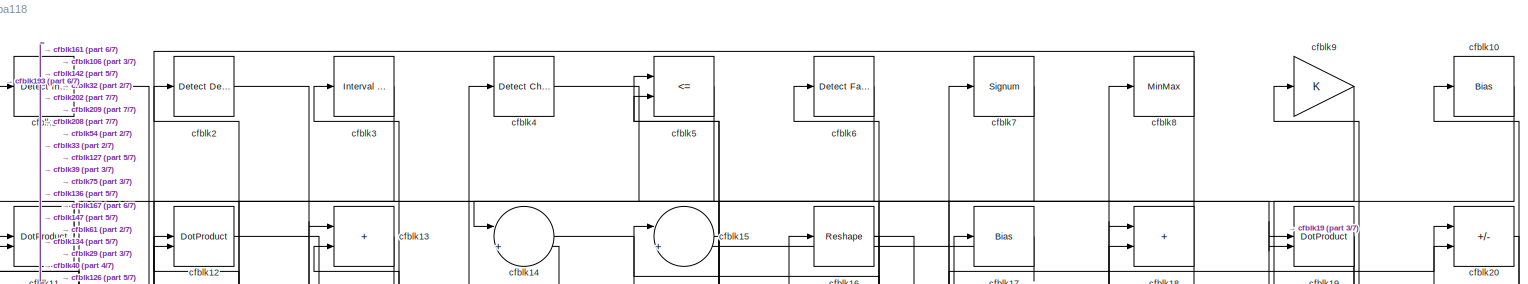
[diagram: root canvas - part 1/7, full width, top band]
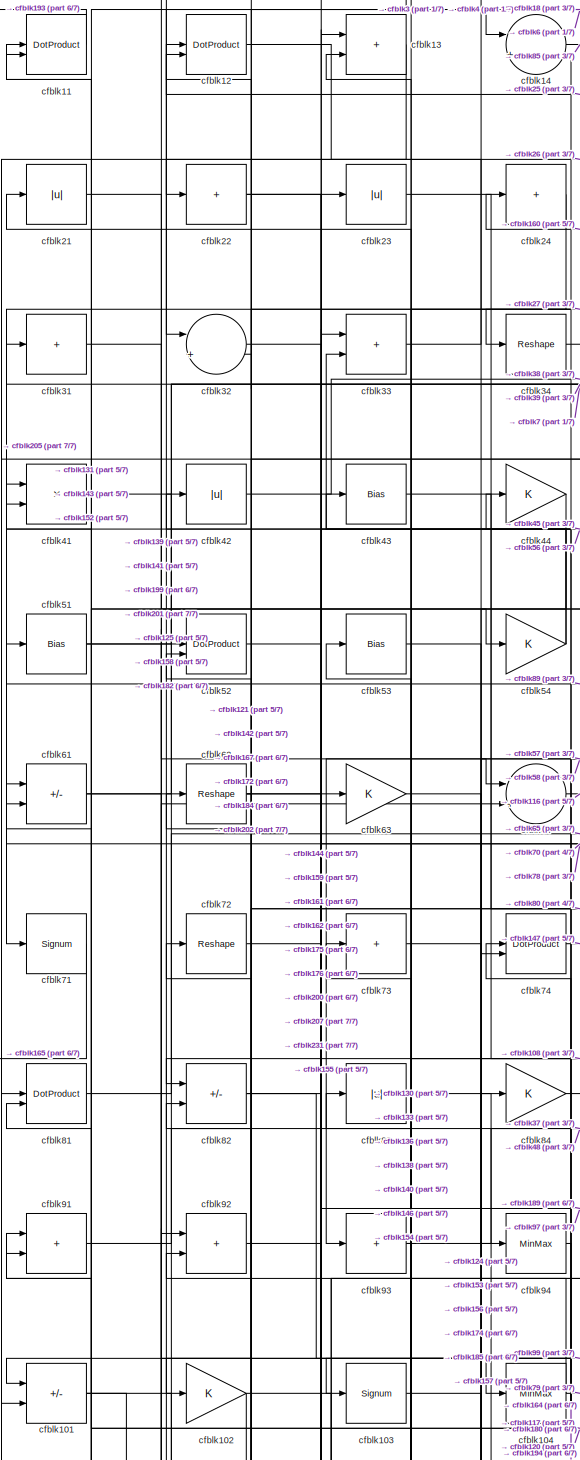
[diagram: root canvas - part 2/7, top left region]
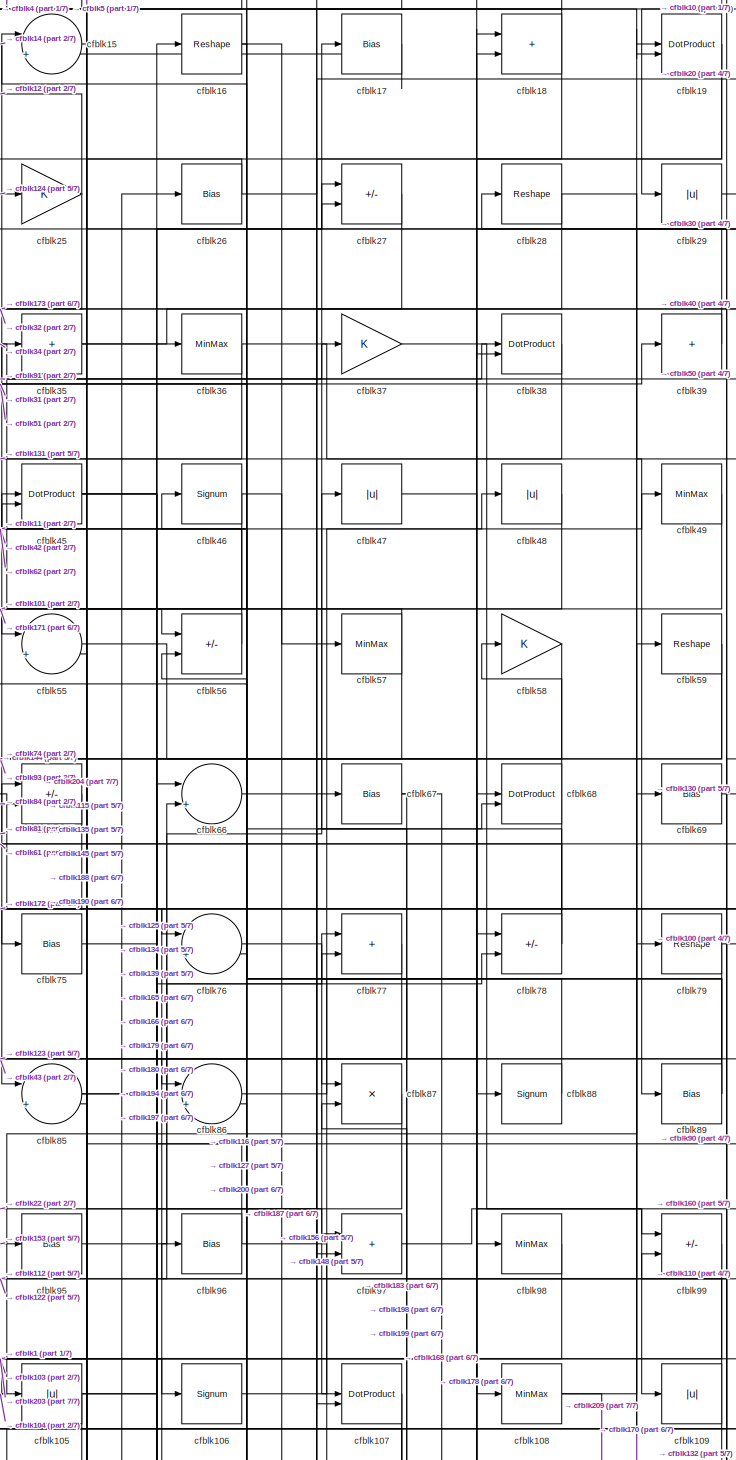
[diagram: root canvas - part 3/7, top center region]
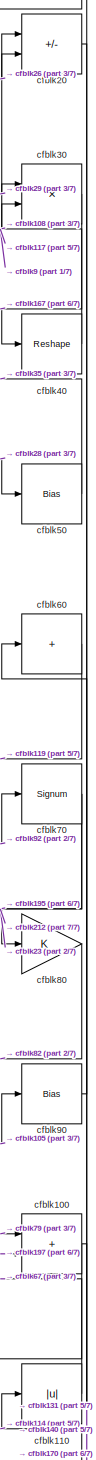
[diagram: root canvas - part 4/7, top right region]
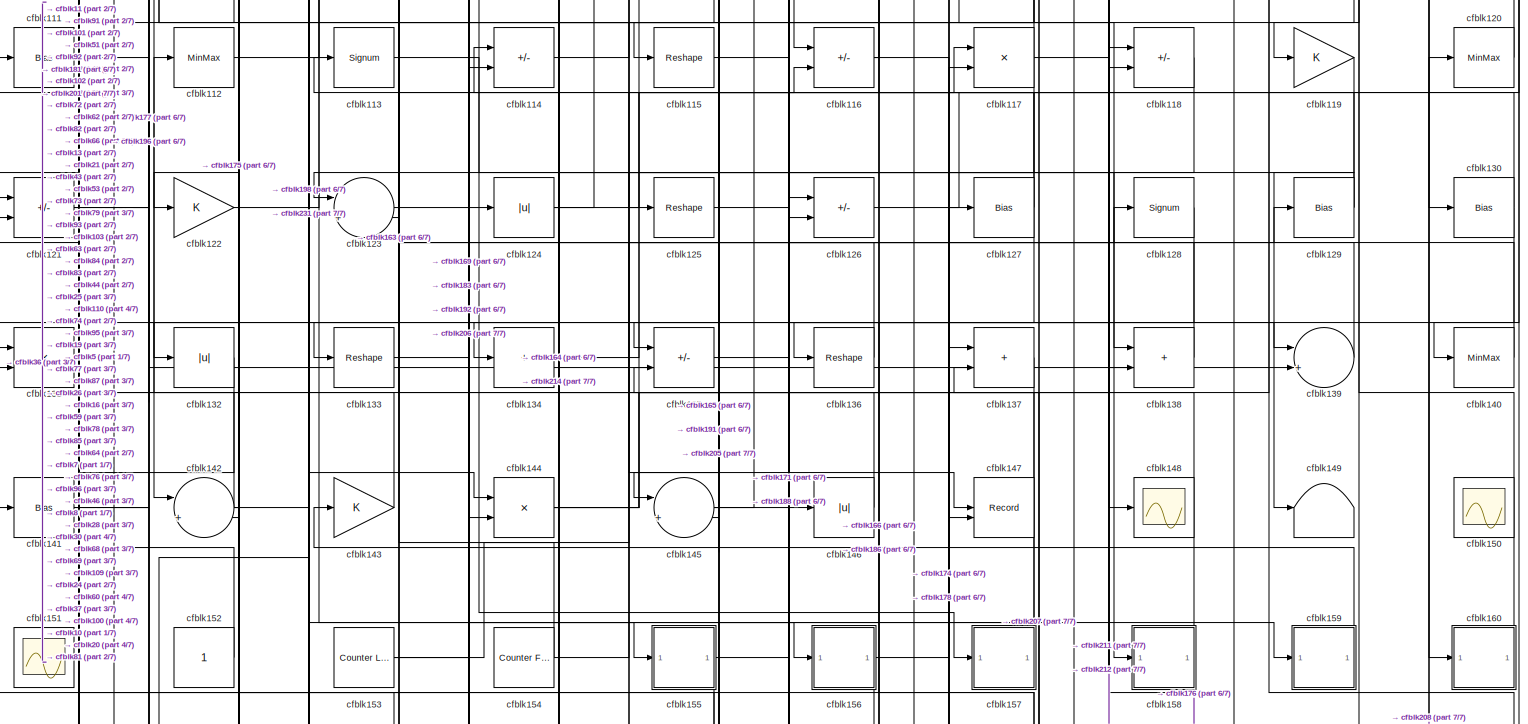
[diagram: root canvas - part 5/7, full width, middle band]
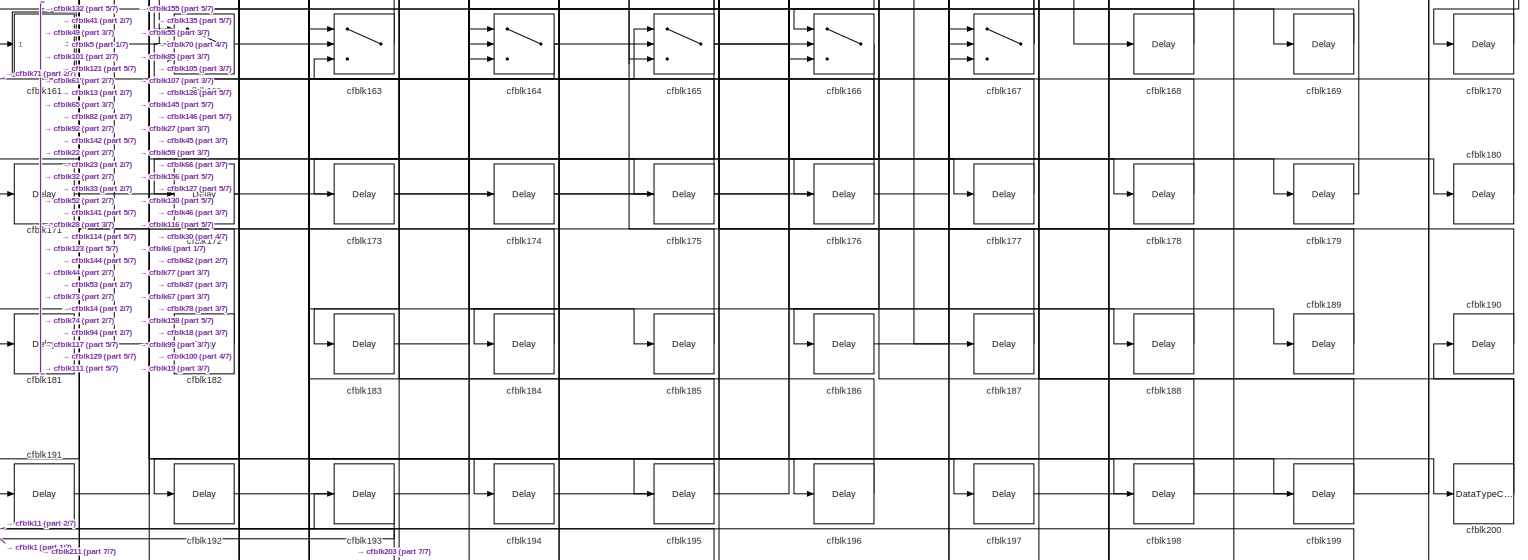
[diagram: root canvas - part 6/7, full width, bottom band]
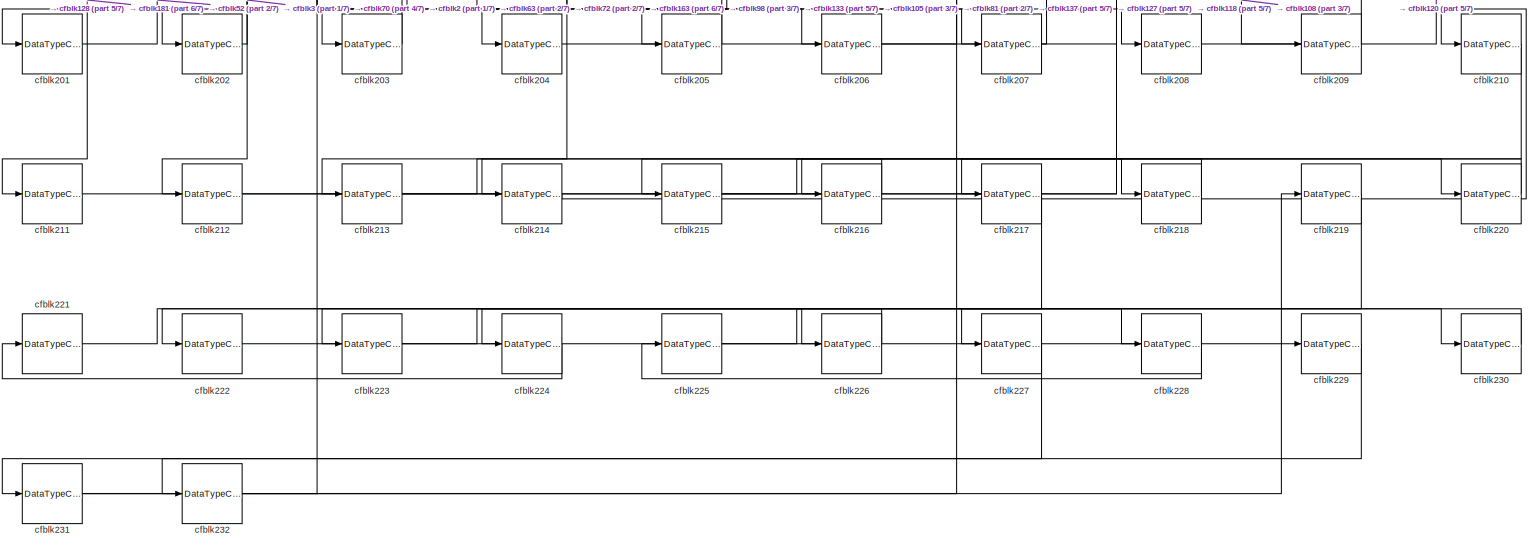
[diagram: root canvas - part 7/7, full width, bottom band]
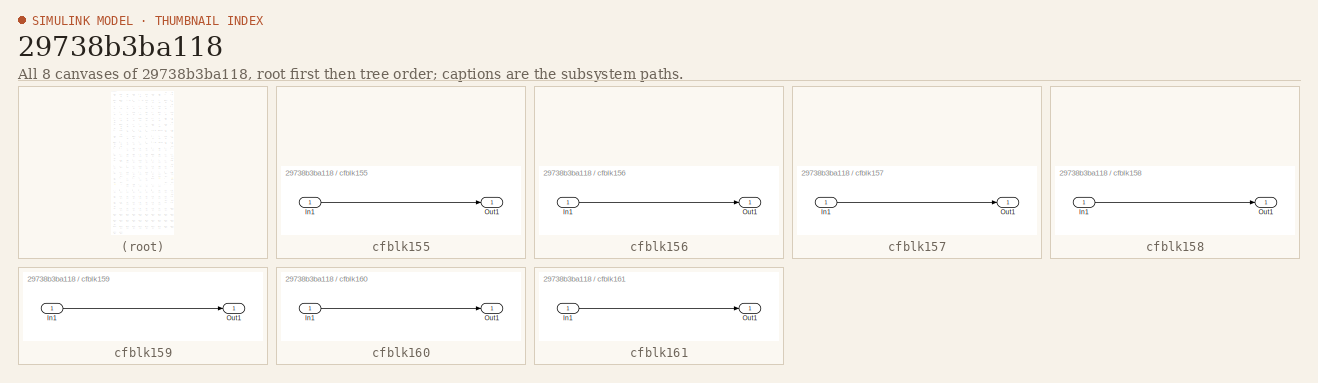
[diagram: thumbnail index - all 8 canvases of the model, root first then tree order]
MODEL slx_29738b3ba118
KIND model
CONFIG AbsTol = auto
CONFIG EnableMultiTasking = off
CONFIG FixedStep = auto
CONFIG MaxStep = auto
CONFIG MinStep = auto
CONFIG RelTol = 1e-3
CONFIG SampleTimeConstraint = Unconstrained
CONFIG SolverName = VariableStepAuto
CONFIG StartTime = 0.0
CONFIG StopTime = 10.0
BLOCK [Reference] cfblk1  REF=simulink/Logic and Bit
Operations/Detect
Increase
  LibrarySourceBlock = hdlsllib/Logic and Bit\nOperations/Detect\nIncrease
  SourceBlock = simulink/Logic and Bit\nOperations/Detect\nIncrease
  SourceType = Detect Increase
BLOCK [Bias] cfblk10
  Bias = 0.0
  SaturateOnIntegerOverflow = off
BLOCK [Sum] cfblk100
  IconShape = rectangular
BLOCK [Sum] cfblk101
  IconShape = rectangular
  Inputs = +-
BLOCK [Gain] cfblk102
BLOCK [Signum] cfblk103
BLOCK [MinMax] cfblk104
BLOCK [Abs] cfblk105
  SaturateOnIntegerOverflow = off
BLOCK [Signum] cfblk106
BLOCK [DotProduct] cfblk107
  OutDataTypeStr = Inherit: Inherit via internal rule
BLOCK [MinMax] cfblk108
BLOCK [Abs] cfblk109
  SaturateOnIntegerOverflow = off
BLOCK [DotProduct] cfblk11
  OutDataTypeStr = Inherit: Inherit via internal rule
BLOCK [Abs] cfblk110
  SaturateOnIntegerOverflow = off
BLOCK [Bias] cfblk111
  Bias = 0.0
  SaturateOnIntegerOverflow = off
BLOCK [MinMax] cfblk112
BLOCK [Signum] cfblk113
BLOCK [Sum] cfblk114
  IconShape = rectangular
  Inputs = +-
BLOCK [Reshape] cfblk115
BLOCK [Sum] cfblk116
  IconShape = rectangular
  Inputs = +-
BLOCK [Product] cfblk117
  Inputs = */
  RndMeth = Zero
  SaturateOnIntegerOverflow = on
BLOCK [Sum] cfblk118
  IconShape = rectangular
  Inputs = +-
BLOCK [Gain] cfblk119
BLOCK [DotProduct] cfblk12
  OutDataTypeStr = Inherit: Inherit via internal rule
BLOCK [MinMax] cfblk120
BLOCK [Sum] cfblk121
  IconShape = rectangular
  Inputs = +-
BLOCK [Gain] cfblk122
BLOCK [Sum] cfblk123
  Inputs = |++
BLOCK [Abs] cfblk124
  SaturateOnIntegerOverflow = off
BLOCK [Reshape] cfblk125
BLOCK [Sum] cfblk126
  IconShape = rectangular
  Inputs = +-
BLOCK [Bias] cfblk127
  Bias = 0.0
  SaturateOnIntegerOverflow = off
BLOCK [Signum] cfblk128
BLOCK [Bias] cfblk129
  Bias = 0.0
  SaturateOnIntegerOverflow = off
BLOCK [Sum] cfblk13
  IconShape = rectangular
BLOCK [Bias] cfblk130
  Bias = 0.0
  SaturateOnIntegerOverflow = off
BLOCK [Product] cfblk131
  Inputs = */
  RndMeth = Zero
  SaturateOnIntegerOverflow = on
BLOCK [Abs] cfblk132
  SaturateOnIntegerOverflow = off
BLOCK [Reshape] cfblk133
BLOCK [Sum] cfblk134
  IconShape = rectangular
  Inputs = +
BLOCK [Sum] cfblk135
  IconShape = rectangular
  Inputs = +-
BLOCK [Reshape] cfblk136
BLOCK [Sum] cfblk137
  IconShape = rectangular
BLOCK [Sum] cfblk138
  IconShape = rectangular
BLOCK [Sum] cfblk139
  Inputs = |++
BLOCK [Sum] cfblk14
  Inputs = |++
BLOCK [MinMax] cfblk140
BLOCK [Bias] cfblk141
  Bias = 0.0
  SaturateOnIntegerOverflow = off
BLOCK [Sum] cfblk142
  Inputs = |++
BLOCK [Gain] cfblk143
BLOCK [Product] cfblk144
  Inputs = */
  RndMeth = Zero
  SaturateOnIntegerOverflow = on
BLOCK [Sum] cfblk145
  Inputs = |++
BLOCK [Abs] cfblk146
  SaturateOnIntegerOverflow = off
BLOCK [Record] cfblk147
  CompatibilityTag = XY
  FileSettingsInternal = {"entries":[{"content":{"excelSettings":{"content":{},"type":"Streamout.ExcelSettings"}},"type":"Streamout.FileSettingStorage","uuid":""}],"packageUris":["http:\/\/schema.mathworks.com\/mf0\/streamout_blocks\/R2020a"],"version":"1.0"}
  Layout = [1 1]
  SignalsInternal = {"entries":[{"content":{"signals":[{"content":{"blockPath":[],"dimensions":[1],"domain":"","lineColor":"#a2142f","plots":[1],"port":1,"signalID":1091,"signalName":"XY Graph:1"},"type":"RecordBlkView.Signal","uuid":""},{"content":{"blockPath":[],"dimensions":[1],"domain":"","lineColor":"#139fff","plots":[1],"port":2,"signalID":1094,"signalName":"XY Graph:2"},"type":"RecordBlkView.Signal","uuid":""}...<+146ch>
  VisualizationBindings = {"xyplotplugin":{"info":[{"series":[{"bindingParametersList":[{"parameter":"X-Axis","signalID":1091,"signalName":"XY Graph:1"},{"parameter":"Y-Axis","signalID":1094,"signalName":"XY Graph:2"}],"seriesID":44027}],"subplotID":1}]}}
  st = -1
BLOCK [Scope] cfblk148
  Floating = off
  NumInputPorts = 1
  ScopeSpecificationString = Simulink.scopes.TimeScopeBlockCfg('CurrentConfiguration', extmgr.ConfigurationSet(extmgr.Configuration('Core','General UI',true),extmgr.Configuration('Core','Source UI',true),extmgr.Configuration('Sources','WiredSimulink',true,'DataLoggingVariableName','ScopeData2','DataLoggingSaveFormat','Array','DataLoggingLimitDataPoints',true,'DataLoggingDecimation','1'),extmgr.Configuration('Visuals','Time Do...<+868ch>
BLOCK [Terminator] cfblk149
BLOCK [Sum] cfblk15
  Inputs = |++
BLOCK [Scope] cfblk150
  Floating = on
  NumInputPorts = 1
  ScopeSpecificationString = Simulink.scopes.TimeScopeBlockCfg('CurrentConfiguration', extmgr.ConfigurationSet(extmgr.Configuration('Core','General UI',true,'FigureColor',[0.156862745098039 0.156862745098039 0.156862745098039]),extmgr.Configuration('Core','Source UI',true),extmgr.Configuration('Sources','WiredSimulink',true,'DataLoggingVariableName','ScopeData1','DataLoggingSaveFormat','StructureWithTime','DataLoggingLimitDat...<+2713ch>
BLOCK [Scope] cfblk151
  Floating = on
  NumInputPorts = 1
  ScopeSpecificationString = Simulink.scopes.TimeScopeBlockCfg('CurrentConfiguration', extmgr.ConfigurationSet(extmgr.Configuration('Core','General UI',true,'FigureColor',[0.156862745098039 0.156862745098039 0.156862745098039]),extmgr.Configuration('Core','Source UI',true),extmgr.Configuration('Sources','WiredSimulink',true,'DataLoggingVariableName','ScopeData1','DataLoggingSaveFormat','StructureWithTime','DataLoggingLimitDat...<+2713ch>
BLOCK [Constant] cfblk152
  SampleTime = -1
BLOCK [Reference] cfblk153  REF=hdlsllib/Sources/Counter
Limited
  SourceBlock = hdlsllib/Sources/Counter\nLimited
  SourceType = Counter Limited
BLOCK [Reference] cfblk154  REF=hdlsllib/Sources/Counter
Free-Running
  SourceBlock = hdlsllib/Sources/Counter\nFree-Running
  SourceType = Counter Free-Running
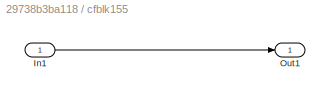
BLOCK [SubSystem] cfblk155
  LibrarySourceBlock = hdlsllib/Ports &\nSubsystems/Subsystem
BLOCK [Inport] cfblk155/In1
BLOCK [Outport] cfblk155/Out1
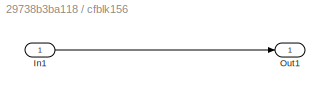
BLOCK [SubSystem] cfblk156
  LibrarySourceBlock = hdlsllib/Ports &\nSubsystems/Subsystem
BLOCK [Inport] cfblk156/In1
BLOCK [Outport] cfblk156/Out1
BLOCK [SubSystem] cfblk157
  LibrarySourceBlock = hdlsllib/Ports &\nSubsystems/Subsystem
BLOCK [Inport] cfblk157/In1
BLOCK [Outport] cfblk157/Out1
BLOCK [SubSystem] cfblk158
  LibrarySourceBlock = hdlsllib/Ports &\nSubsystems/Subsystem
BLOCK [Inport] cfblk158/In1
BLOCK [Outport] cfblk158/Out1
BLOCK [SubSystem] cfblk159
  LibrarySourceBlock = hdlsllib/Ports &\nSubsystems/Subsystem
BLOCK [Inport] cfblk159/In1
BLOCK [Outport] cfblk159/Out1
BLOCK [Reshape] cfblk16
BLOCK [SubSystem] cfblk160
  LibrarySourceBlock = hdlsllib/Ports &\nSubsystems/Subsystem
BLOCK [Inport] cfblk160/In1
BLOCK [Outport] cfblk160/Out1
BLOCK [SubSystem] cfblk161
  LibrarySourceBlock = hdlsllib/Ports &\nSubsystems/Subsystem
BLOCK [Inport] cfblk161/In1
BLOCK [Outport] cfblk161/Out1
BLOCK [Switch] cfblk162
  InputSameDT = off
  SaturateOnIntegerOverflow = off
BLOCK [Switch] cfblk163
  InputSameDT = off
  SaturateOnIntegerOverflow = off
BLOCK [Switch] cfblk164
  InputSameDT = off
  SaturateOnIntegerOverflow = off
BLOCK [Switch] cfblk165
  InputSameDT = off
  SaturateOnIntegerOverflow = off
BLOCK [Switch] cfblk166
  InputSameDT = off
  SaturateOnIntegerOverflow = off
BLOCK [Switch] cfblk167
  InputSameDT = off
  SaturateOnIntegerOverflow = off
BLOCK [Delay] cfblk168
  InputPortMap = u0
  SampleTime = 1
BLOCK [Delay] cfblk169
  InputPortMap = u0
  SampleTime = 1
BLOCK [Bias] cfblk17
  Bias = 0.0
  SaturateOnIntegerOverflow = off
BLOCK [Delay] cfblk170
  InputPortMap = u0
  SampleTime = 1
BLOCK [Delay] cfblk171
  InputPortMap = u0
  SampleTime = 1
BLOCK [Delay] cfblk172
  InputPortMap = u0
  SampleTime = 1
BLOCK [Delay] cfblk173
  InputPortMap = u0
  SampleTime = 1
BLOCK [Delay] cfblk174
  InputPortMap = u0
  SampleTime = 1
BLOCK [Delay] cfblk175
  InputPortMap = u0
  SampleTime = 1
BLOCK [Delay] cfblk176
  InputPortMap = u0
  SampleTime = 1
BLOCK [Delay] cfblk177
  InputPortMap = u0
  SampleTime = 1
BLOCK [Delay] cfblk178
  InputPortMap = u0
  SampleTime = 1
BLOCK [Delay] cfblk179
  InputPortMap = u0
  SampleTime = 1
BLOCK [Sum] cfblk18
  IconShape = rectangular
BLOCK [Delay] cfblk180
  InputPortMap = u0
  SampleTime = 1
BLOCK [Delay] cfblk181
  InputPortMap = u0
  SampleTime = 1
BLOCK [Delay] cfblk182
  InputPortMap = u0
  SampleTime = 1
BLOCK [Delay] cfblk183
  InputPortMap = u0
  SampleTime = 1
BLOCK [Delay] cfblk184
  InputPortMap = u0
  SampleTime = 1
BLOCK [Delay] cfblk185
  InputPortMap = u0
  SampleTime = 1
BLOCK [Delay] cfblk186
  InputPortMap = u0
  SampleTime = 1
BLOCK [Delay] cfblk187
  InputPortMap = u0
  SampleTime = 1
BLOCK [Delay] cfblk188
  InputPortMap = u0
  SampleTime = 1
BLOCK [Delay] cfblk189
  InputPortMap = u0
  SampleTime = 1
BLOCK [DotProduct] cfblk19
  OutDataTypeStr = Inherit: Inherit via internal rule
BLOCK [Delay] cfblk190
  InputPortMap = u0
  SampleTime = 1
BLOCK [Delay] cfblk191
  InputPortMap = u0
  SampleTime = 1
BLOCK [Delay] cfblk192
  InputPortMap = u0
  SampleTime = 1
BLOCK [Delay] cfblk193
  InputPortMap = u0
  SampleTime = 1
BLOCK [Delay] cfblk194
  InputPortMap = u0
  SampleTime = 1
BLOCK [Delay] cfblk195
  InputPortMap = u0
  SampleTime = 1
BLOCK [Delay] cfblk196
  InputPortMap = u0
  SampleTime = 1
BLOCK [Delay] cfblk197
  InputPortMap = u0
  SampleTime = 1
BLOCK [Delay] cfblk198
  InputPortMap = u0
  SampleTime = 1
BLOCK [Delay] cfblk199
  InputPortMap = u0
  SampleTime = 1
BLOCK [Reference] cfblk2  REF=simulink/Logic and Bit
Operations/Detect
Decrease
  LibrarySourceBlock = hdlsllib/Logic and Bit\nOperations/Detect\nDecrease
  SourceBlock = simulink/Logic and Bit\nOperations/Detect\nDecrease
  SourceType = Detect Decrease
BLOCK [Sum] cfblk20
  IconShape = rectangular
  Inputs = +-
BLOCK [DataTypeConversion] cfblk200
  RndMeth = Floor
  SaturateOnIntegerOverflow = off
BLOCK [DataTypeConversion] cfblk201
  OutDataTypeStr = uint8
  RndMeth = Floor
  SaturateOnIntegerOverflow = off
BLOCK [DataTypeConversion] cfblk202
  OutDataTypeStr = uint8
  RndMeth = Floor
  SaturateOnIntegerOverflow = off
BLOCK [DataTypeConversion] cfblk203
  OutDataTypeStr = uint8
  RndMeth = Floor
  SaturateOnIntegerOverflow = off
BLOCK [DataTypeConversion] cfblk204
  OutDataTypeStr = uint8
  RndMeth = Floor
  SaturateOnIntegerOverflow = off
BLOCK [DataTypeConversion] cfblk205
  OutDataTypeStr = uint8
  RndMeth = Floor
  SaturateOnIntegerOverflow = off
BLOCK [DataTypeConversion] cfblk206
  OutDataTypeStr = uint8
  RndMeth = Floor
  SaturateOnIntegerOverflow = off
BLOCK [DataTypeConversion] cfblk207
  OutDataTypeStr = uint8
  RndMeth = Floor
  SaturateOnIntegerOverflow = off
BLOCK [DataTypeConversion] cfblk208
  OutDataTypeStr = uint8
  RndMeth = Floor
  SaturateOnIntegerOverflow = off
BLOCK [DataTypeConversion] cfblk209
  OutDataTypeStr = uint8
  RndMeth = Floor
  SaturateOnIntegerOverflow = off
BLOCK [Abs] cfblk21
  SaturateOnIntegerOverflow = off
BLOCK [DataTypeConversion] cfblk210
  RndMeth = Floor
  SaturateOnIntegerOverflow = off
BLOCK [DataTypeConversion] cfblk211
  OutDataTypeStr = uint8
  RndMeth = Floor
  SaturateOnIntegerOverflow = off
BLOCK [DataTypeConversion] cfblk212
  OutDataTypeStr = uint8
  RndMeth = Floor
  SaturateOnIntegerOverflow = off
BLOCK [DataTypeConversion] cfblk213
  RndMeth = Floor
  SaturateOnIntegerOverflow = off
BLOCK [DataTypeConversion] cfblk214
  OutDataTypeStr = uint8
  RndMeth = Floor
  SaturateOnIntegerOverflow = off
BLOCK [DataTypeConversion] cfblk215
  RndMeth = Floor
  SaturateOnIntegerOverflow = off
BLOCK [DataTypeConversion] cfblk216
  OutDataTypeStr = uint8
  RndMeth = Floor
  SaturateOnIntegerOverflow = off
BLOCK [DataTypeConversion] cfblk217
  RndMeth = Floor
  SaturateOnIntegerOverflow = off
BLOCK [DataTypeConversion] cfblk218
  OutDataTypeStr = uint8
  RndMeth = Floor
  SaturateOnIntegerOverflow = off
BLOCK [DataTypeConversion] cfblk219
  RndMeth = Floor
  SaturateOnIntegerOverflow = off
BLOCK [Sum] cfblk22
  IconShape = rectangular
  Inputs = +
BLOCK [DataTypeConversion] cfblk220
  OutDataTypeStr = uint8
  RndMeth = Floor
  SaturateOnIntegerOverflow = off
BLOCK [DataTypeConversion] cfblk221
  RndMeth = Floor
  SaturateOnIntegerOverflow = off
BLOCK [DataTypeConversion] cfblk222
  OutDataTypeStr = uint8
  RndMeth = Floor
  SaturateOnIntegerOverflow = off
BLOCK [DataTypeConversion] cfblk223
  RndMeth = Floor
  SaturateOnIntegerOverflow = off
BLOCK [DataTypeConversion] cfblk224
  OutDataTypeStr = uint8
  RndMeth = Floor
  SaturateOnIntegerOverflow = off
BLOCK [DataTypeConversion] cfblk225
  RndMeth = Floor
  SaturateOnIntegerOverflow = off
BLOCK [DataTypeConversion] cfblk226
  OutDataTypeStr = uint8
  RndMeth = Floor
  SaturateOnIntegerOverflow = off
BLOCK [DataTypeConversion] cfblk227
  RndMeth = Floor
  SaturateOnIntegerOverflow = off
BLOCK [DataTypeConversion] cfblk228
  OutDataTypeStr = uint8
  RndMeth = Floor
  SaturateOnIntegerOverflow = off
BLOCK [DataTypeConversion] cfblk229
  RndMeth = Floor
  SaturateOnIntegerOverflow = off
BLOCK [Abs] cfblk23
  SaturateOnIntegerOverflow = off
BLOCK [DataTypeConversion] cfblk230
  OutDataTypeStr = uint8
  RndMeth = Floor
  SaturateOnIntegerOverflow = off
BLOCK [DataTypeConversion] cfblk231
  RndMeth = Floor
  SaturateOnIntegerOverflow = off
BLOCK [DataTypeConversion] cfblk232
  OutDataTypeStr = uint8
  RndMeth = Floor
  SaturateOnIntegerOverflow = off
BLOCK [Sum] cfblk24
  IconShape = rectangular
  Inputs = +
BLOCK [Gain] cfblk25
BLOCK [Bias] cfblk26
  Bias = 0.0
  SaturateOnIntegerOverflow = off
BLOCK [Sum] cfblk27
  IconShape = rectangular
  Inputs = +-
BLOCK [Reshape] cfblk28
BLOCK [Abs] cfblk29
  SaturateOnIntegerOverflow = off
BLOCK [Reference] cfblk3  REF=hdlsllib/Logic and Bit
Operations/Interval Test
  SourceBlock = hdlsllib/Logic and Bit\nOperations/Interval Test
  SourceType = Interval Test
BLOCK [Product] cfblk30
  Inputs = */
  RndMeth = Zero
  SaturateOnIntegerOverflow = on
BLOCK [Sum] cfblk31
  IconShape = rectangular
  Inputs = +
BLOCK [Sum] cfblk32
  Inputs = |++
BLOCK [Sum] cfblk33
  IconShape = rectangular
BLOCK [Reshape] cfblk34
BLOCK [Sum] cfblk35
  IconShape = rectangular
  Inputs = +
BLOCK [MinMax] cfblk36
BLOCK [Gain] cfblk37
BLOCK [DotProduct] cfblk38
  OutDataTypeStr = Inherit: Inherit via internal rule
BLOCK [Sum] cfblk39
  IconShape = rectangular
  Inputs = +
BLOCK [Reference] cfblk4  REF=simulink/Logic and Bit
Operations/Detect
Change
  LibrarySourceBlock = hdlsllib/Logic and Bit\nOperations/Detect\nChange
  SourceBlock = simulink/Logic and Bit\nOperations/Detect\nChange
  SourceType = Detect Change
BLOCK [Reshape] cfblk40
BLOCK [Product] cfblk41
  Inputs = */
  RndMeth = Zero
  SaturateOnIntegerOverflow = on
BLOCK [Abs] cfblk42
  SaturateOnIntegerOverflow = off
BLOCK [Bias] cfblk43
  Bias = 0.0
  SaturateOnIntegerOverflow = off
BLOCK [Gain] cfblk44
BLOCK [DotProduct] cfblk45
  OutDataTypeStr = Inherit: Inherit via internal rule
BLOCK [Signum] cfblk46
BLOCK [Abs] cfblk47
  SaturateOnIntegerOverflow = off
BLOCK [Abs] cfblk48
  SaturateOnIntegerOverflow = off
BLOCK [MinMax] cfblk49
BLOCK [RelationalOperator] cfblk5
  InputSameDT = off
  Operator = <=
  OutDataTypeStr = boolean
BLOCK [Bias] cfblk50
  Bias = 0.0
  SaturateOnIntegerOverflow = off
BLOCK [Bias] cfblk51
  Bias = 0.0
  SaturateOnIntegerOverflow = off
BLOCK [DotProduct] cfblk52
  OutDataTypeStr = Inherit: Inherit via internal rule
BLOCK [Bias] cfblk53
  Bias = 0.0
  SaturateOnIntegerOverflow = off
BLOCK [Gain] cfblk54
BLOCK [Sum] cfblk55
  Inputs = |++
BLOCK [Sum] cfblk56
  IconShape = rectangular
  Inputs = +-
BLOCK [MinMax] cfblk57
BLOCK [Gain] cfblk58
BLOCK [Reshape] cfblk59
BLOCK [Reference] cfblk6  REF=hdlsllib/Logic and Bit
Operations/Detect Fall
Nonpositive
  SourceBlock = hdlsllib/Logic and Bit\nOperations/Detect Fall\nNonpositive
  SourceType = Detect Fall Nonpositive
BLOCK [Sum] cfblk60
  IconShape = rectangular
  Inputs = +
BLOCK [Sum] cfblk61
  IconShape = rectangular
  Inputs = +-
BLOCK [Reshape] cfblk62
BLOCK [Gain] cfblk63
BLOCK [Sum] cfblk64
  Inputs = |++
BLOCK [Sum] cfblk65
  IconShape = rectangular
  Inputs = +-
BLOCK [Sum] cfblk66
  Inputs = |++
BLOCK [Bias] cfblk67
  Bias = 0.0
  SaturateOnIntegerOverflow = off
BLOCK [DotProduct] cfblk68
  OutDataTypeStr = Inherit: Inherit via internal rule
BLOCK [Bias] cfblk69
  Bias = 0.0
  SaturateOnIntegerOverflow = off
BLOCK [Signum] cfblk7
BLOCK [Signum] cfblk70
BLOCK [Signum] cfblk71
BLOCK [Reshape] cfblk72
BLOCK [Sum] cfblk73
  IconShape = rectangular
  Inputs = +
BLOCK [DotProduct] cfblk74
  OutDataTypeStr = Inherit: Inherit via internal rule
BLOCK [Bias] cfblk75
  Bias = 0.0
  SaturateOnIntegerOverflow = off
BLOCK [Sum] cfblk76
  Inputs = |++
BLOCK [Sum] cfblk77
  IconShape = rectangular
BLOCK [Sum] cfblk78
  IconShape = rectangular
  Inputs = +-
BLOCK [Reshape] cfblk79
BLOCK [MinMax] cfblk8
BLOCK [Gain] cfblk80
BLOCK [DotProduct] cfblk81
  OutDataTypeStr = Inherit: Inherit via internal rule
BLOCK [Sum] cfblk82
  IconShape = rectangular
  Inputs = +-
BLOCK [Abs] cfblk83
  SaturateOnIntegerOverflow = off
BLOCK [Gain] cfblk84
BLOCK [Sum] cfblk85
  Inputs = |++
BLOCK [Sum] cfblk86
  Inputs = |++
BLOCK [Product] cfblk87
  Inputs = */
  RndMeth = Zero
  SaturateOnIntegerOverflow = on
BLOCK [Signum] cfblk88
BLOCK [Bias] cfblk89
  Bias = 0.0
  SaturateOnIntegerOverflow = off
BLOCK [Gain] cfblk9
BLOCK [Bias] cfblk90
  Bias = 0.0
  SaturateOnIntegerOverflow = off
BLOCK [Sum] cfblk91
  IconShape = rectangular
BLOCK [Sum] cfblk92
  IconShape = rectangular
BLOCK [Sum] cfblk93
  IconShape = rectangular
  Inputs = +
BLOCK [MinMax] cfblk94
BLOCK [Bias] cfblk95
  Bias = 0.0
  SaturateOnIntegerOverflow = off
BLOCK [Bias] cfblk96
  Bias = 0.0
  SaturateOnIntegerOverflow = off
BLOCK [Sum] cfblk97
  IconShape = rectangular
BLOCK [MinMax] cfblk98
BLOCK [Sum] cfblk99
  IconShape = rectangular
  Inputs = +-
NET cfblk100:1 -> cfblk131:1, cfblk170:1
NET cfblk101:1 -> cfblk158:1, cfblk182:1
NET cfblk102:1 -> cfblk121:1, cfblk155:1
LINE cfblk103:1 -> cfblk156:1
NET cfblk104:1 -> cfblk12:2, cfblk79:1
NET cfblk105:1 -> cfblk197:1, cfblk204:1, cfblk90:1
LINE cfblk106:1 -> cfblk18:2
NET cfblk107:1 -> cfblk166:3, cfblk183:1
NET cfblk108:1 -> cfblk209:1, cfblk30:2
NET cfblk109:1 -> cfblk132:1, cfblk86:2
LINE cfblk10:1 -> cfblk75:1
LINE cfblk110:1 -> cfblk67:1
LINE cfblk111:1 -> cfblk138:2
LINE cfblk112:1 -> cfblk66:2
LINE cfblk113:1 -> cfblk138:1
LINE cfblk114:1 -> cfblk110:1
LINE cfblk115:1 -> cfblk78:2
NET cfblk116:1 -> cfblk178:1, cfblk96:1
NET cfblk117:1 -> cfblk165:3, cfblk30:1, cfblk91:2
LINE cfblk118:1 -> cfblk214:1
LINE cfblk119:1 -> cfblk149:1
LINE cfblk11:1 -> cfblk193:1
LINE cfblk120:1 -> cfblk81:2
NET cfblk121:1 -> cfblk177:1, cfblk64:2
LINE cfblk122:1 -> cfblk59:1
LINE cfblk123:1 -> cfblk169:1
NET cfblk124:1 -> cfblk117:1, cfblk25:1
LINE cfblk125:1 -> cfblk16:1
LINE cfblk126:1 -> cfblk10:1
NET cfblk127:1 -> cfblk166:1, cfblk5:1, cfblk76:2
LINE cfblk128:1 -> cfblk201:1
NET cfblk129:1 -> cfblk113:1, cfblk123:1
LINE cfblk12:1 -> cfblk94:1
NET cfblk130:1 -> cfblk186:1, cfblk73:1
LINE cfblk131:1 -> cfblk41:1
LINE cfblk132:1 -> cfblk181:1
LINE cfblk133:1 -> cfblk206:1
LINE cfblk134:1 -> cfblk8:1
LINE cfblk135:1 -> cfblk126:2
LINE cfblk136:1 -> cfblk83:1
LINE cfblk137:1 -> cfblk205:1
LINE cfblk138:1 -> cfblk21:1
LINE cfblk139:1 -> cfblk44:1
LINE cfblk13:1 -> cfblk101:2
LINE cfblk140:1 -> cfblk53:1
NET cfblk141:1 -> cfblk196:1, cfblk92:1
NET cfblk142:1 -> cfblk112:1, cfblk198:1, cfblk72:1
LINE cfblk143:1 -> cfblk91:1
NET cfblk144:1 -> cfblk28:1, cfblk68:1, cfblk69:1
NET cfblk145:1 -> cfblk188:1, cfblk26:1
LINE cfblk146:1 -> cfblk43:1
LINE cfblk14:1 -> cfblk85:1
LINE cfblk152:1 -> cfblk11:2
NET cfblk153:1 -> cfblk84:1, cfblk95:1
NET cfblk154:1 -> cfblk116:2, cfblk13:2
LINE cfblk155/In1:1 -> cfblk155/Out1:1
NET cfblk155:1 -> cfblk128:1, cfblk191:1
LINE cfblk156/In1:1 -> cfblk156/Out1:1
NET cfblk156:1 -> cfblk164:2, cfblk68:2
LINE cfblk157/In1:1 -> cfblk157/Out1:1
LINE cfblk157:1 -> cfblk114:1
LINE cfblk158/In1:1 -> cfblk158/Out1:1
NET cfblk158:1 -> cfblk121:2, cfblk176:1
LINE cfblk159/In1:1 -> cfblk159/Out1:1
LINE cfblk159:1 -> cfblk143:1
LINE cfblk15:1 -> cfblk105:1
LINE cfblk160/In1:1 -> cfblk160/Out1:1
LINE cfblk160:1 -> cfblk24:1
LINE cfblk161/In1:1 -> cfblk161/Out1:1
LINE cfblk161:1 -> cfblk13:1
LINE cfblk162:1 -> cfblk23:1
LINE cfblk163:1 -> cfblk141:1
NET cfblk164:1 -> cfblk129:1, cfblk162:2, cfblk74:1
NET cfblk165:1 -> cfblk111:1, cfblk146:1, cfblk192:1, cfblk27:1
LINE cfblk166:1 -> cfblk184:1
NET cfblk167:1 -> cfblk62:1, cfblk6:1
LINE cfblk168:1 -> cfblk18:1
LINE cfblk169:1 -> cfblk162:1
NET cfblk16:1 -> cfblk57:1, cfblk86:1
LINE cfblk170:1 -> cfblk19:1
LINE cfblk171:1 -> cfblk126:1
LINE cfblk172:1 -> cfblk92:2
LINE cfblk173:1 -> cfblk164:1
LINE cfblk174:1 -> cfblk117:2
LINE cfblk175:1 -> cfblk142:2
LINE cfblk176:1 -> cfblk33:1
LINE cfblk177:1 -> cfblk135:2
LINE cfblk178:1 -> cfblk78:1
LINE cfblk179:1 -> cfblk99:2
LINE cfblk17:1 -> cfblk15:2
LINE cfblk180:1 -> cfblk14:2
LINE cfblk181:1 -> cfblk211:1
LINE cfblk182:1 -> cfblk41:2
LINE cfblk183:1 -> cfblk144:2
LINE cfblk184:1 -> cfblk82:2
LINE cfblk185:1 -> cfblk61:2
LINE cfblk186:1 -> cfblk167:3
LINE cfblk187:1 -> cfblk167:1
LINE cfblk188:1 -> cfblk85:2
LINE cfblk189:1 -> cfblk165:2
NET cfblk18:1 -> cfblk107:2, cfblk14:1
LINE cfblk190:1 -> cfblk55:2
LINE cfblk191:1 -> cfblk162:3
LINE cfblk192:1 -> cfblk114:2
LINE cfblk193:1 -> cfblk1:1
LINE cfblk194:1 -> cfblk66:1
LINE cfblk195:1 -> cfblk163:2
LINE cfblk196:1 -> cfblk163:3
LINE cfblk197:1 -> cfblk100:2
LINE cfblk198:1 -> cfblk87:2
LINE cfblk199:1 -> cfblk77:2
NET cfblk19:1 -> cfblk145:1, cfblk38:2
LINE cfblk1:1 -> cfblk106:1
NET cfblk200:1 -> cfblk190:1, cfblk46:1
LINE cfblk201:1 -> cfblk52:1
LINE cfblk202:1 -> cfblk52:2
LINE cfblk203:1 -> cfblk163:1
LINE cfblk204:1 -> cfblk98:1
LINE cfblk205:1 -> cfblk81:1
LINE cfblk206:1 -> cfblk137:1
LINE cfblk207:1 -> cfblk137:2
LINE cfblk208:1 -> cfblk120:1
LINE cfblk209:1 -> cfblk2:1
LINE cfblk20:1 -> cfblk140:1
LINE cfblk210:1 -> cfblk216:1
LINE cfblk211:1 -> cfblk118:1
LINE cfblk212:1 -> cfblk118:2
LINE cfblk213:1 -> cfblk218:1
LINE cfblk214:1 -> cfblk210:1
LINE cfblk215:1 -> cfblk220:1
LINE cfblk216:1 -> cfblk213:1
LINE cfblk217:1 -> cfblk222:1
LINE cfblk218:1 -> cfblk215:1
LINE cfblk219:1 -> cfblk224:1
LINE cfblk21:1 -> cfblk64:1
LINE cfblk220:1 -> cfblk217:1
LINE cfblk221:1 -> cfblk226:1
LINE cfblk222:1 -> cfblk219:1
LINE cfblk223:1 -> cfblk228:1
LINE cfblk224:1 -> cfblk221:1
LINE cfblk225:1 -> cfblk230:1
LINE cfblk226:1 -> cfblk223:1
LINE cfblk227:1 -> cfblk232:1
LINE cfblk228:1 -> cfblk225:1
LINE cfblk229:1 -> cfblk231:1
NET cfblk22:1 -> cfblk189:1, cfblk97:1
LINE cfblk230:1 -> cfblk227:1
NET cfblk231:1 -> cfblk127:1, cfblk63:1
LINE cfblk232:1 -> cfblk229:1
LINE cfblk23:1 -> cfblk80:1
LINE cfblk24:1 -> cfblk71:1
NET cfblk25:1 -> cfblk12:1, cfblk34:1
NET cfblk26:1 -> cfblk20:2, cfblk22:1
LINE cfblk27:1 -> cfblk32:2
NET cfblk28:1 -> cfblk173:1, cfblk50:1
LINE cfblk29:1 -> cfblk20:1
LINE cfblk2:1 -> cfblk208:1
LINE cfblk30:1 -> cfblk167:2
LINE cfblk31:1 -> cfblk54:1
LINE cfblk32:1 -> cfblk175:1
LINE cfblk33:1 -> cfblk4:1
LINE cfblk34:1 -> cfblk56:1
NET cfblk35:1 -> cfblk27:2, cfblk40:1
NET cfblk36:1 -> cfblk131:2, cfblk89:1
LINE cfblk37:1 -> cfblk160:1
LINE cfblk38:1 -> cfblk122:1
LINE cfblk39:1 -> cfblk5:2
LINE cfblk3:1 -> cfblk202:1
LINE cfblk40:1 -> cfblk9:1
LINE cfblk41:1 -> cfblk125:1
LINE cfblk42:1 -> cfblk38:1
LINE cfblk43:1 -> cfblk108:1
LINE cfblk44:1 -> cfblk164:3
NET cfblk45:1 -> cfblk179:1, cfblk180:1, cfblk97:2
NET cfblk46:1 -> cfblk145:2, cfblk187:1
LINE cfblk47:1 -> cfblk99:1
LINE cfblk48:1 -> cfblk101:1
LINE cfblk49:1 -> cfblk171:1
LINE cfblk4:1 -> cfblk19:2
LINE cfblk50:1 -> cfblk35:1
NET cfblk51:1 -> cfblk139:2, cfblk39:1
LINE cfblk52:1 -> cfblk200:1
LINE cfblk53:1 -> cfblk174:1
NET cfblk54:1 -> cfblk33:2, cfblk3:1
LINE cfblk55:1 -> cfblk88:1
LINE cfblk56:1 -> cfblk11:1
NET cfblk57:1 -> cfblk55:1, cfblk74:2
LINE cfblk58:1 -> cfblk93:1
NET cfblk59:1 -> cfblk134:1, cfblk166:2
LINE cfblk5:1 -> cfblk161:1
LINE cfblk60:1 -> cfblk119:1
NET cfblk61:1 -> cfblk199:1, cfblk7:1
NET cfblk62:1 -> cfblk102:1, cfblk144:1, cfblk45:2
LINE cfblk63:1 -> cfblk124:1
LINE cfblk64:1 -> cfblk116:1
LINE cfblk65:1 -> cfblk172:1
LINE cfblk66:1 -> cfblk47:1
NET cfblk67:1 -> cfblk168:1, cfblk87:1
NET cfblk68:1 -> cfblk58:1, cfblk76:1
LINE cfblk69:1 -> cfblk130:1
LINE cfblk6:1 -> cfblk32:1
NET cfblk70:1 -> cfblk195:1, cfblk212:1
LINE cfblk71:1 -> cfblk165:1
LINE cfblk72:1 -> cfblk207:1
LINE cfblk73:1 -> cfblk185:1
LINE cfblk74:1 -> cfblk147:1
LINE cfblk75:1 -> cfblk36:1
LINE cfblk76:1 -> cfblk107:1
LINE cfblk77:1 -> cfblk115:1
NET cfblk78:1 -> cfblk42:1, cfblk61:1
NET cfblk79:1 -> cfblk100:1, cfblk123:2
LINE cfblk7:1 -> cfblk136:1
LINE cfblk80:1 -> cfblk82:1
LINE cfblk81:1 -> cfblk65:1
NET cfblk82:1 -> cfblk104:1, cfblk159:1
LINE cfblk83:1 -> cfblk157:1
LINE cfblk84:1 -> cfblk65:2
NET cfblk85:1 -> cfblk139:1, cfblk77:1
LINE cfblk86:1 -> cfblk49:1
LINE cfblk87:1 -> cfblk135:1
LINE cfblk88:1 -> cfblk15:1
NET cfblk89:1 -> cfblk31:1, cfblk51:1, cfblk56:2
NET cfblk8:1 -> cfblk142:1, cfblk147:2
LINE cfblk90:1 -> cfblk60:1
LINE cfblk91:1 -> cfblk37:1
LINE cfblk92:1 -> cfblk70:1
NET cfblk93:1 -> cfblk133:1, cfblk48:1
LINE cfblk94:1 -> cfblk194:1
LINE cfblk95:1 -> cfblk17:1
NET cfblk96:1 -> cfblk148:1, cfblk45:1
LINE cfblk97:1 -> cfblk109:1
LINE cfblk98:1 -> cfblk203:1
LINE cfblk99:1 -> cfblk103:1
LINE cfblk9:1 -> cfblk29:1
note: NET lines group one-source signal fan-out (src -> all destinations, sorted); 1:1 wires keep LINE
